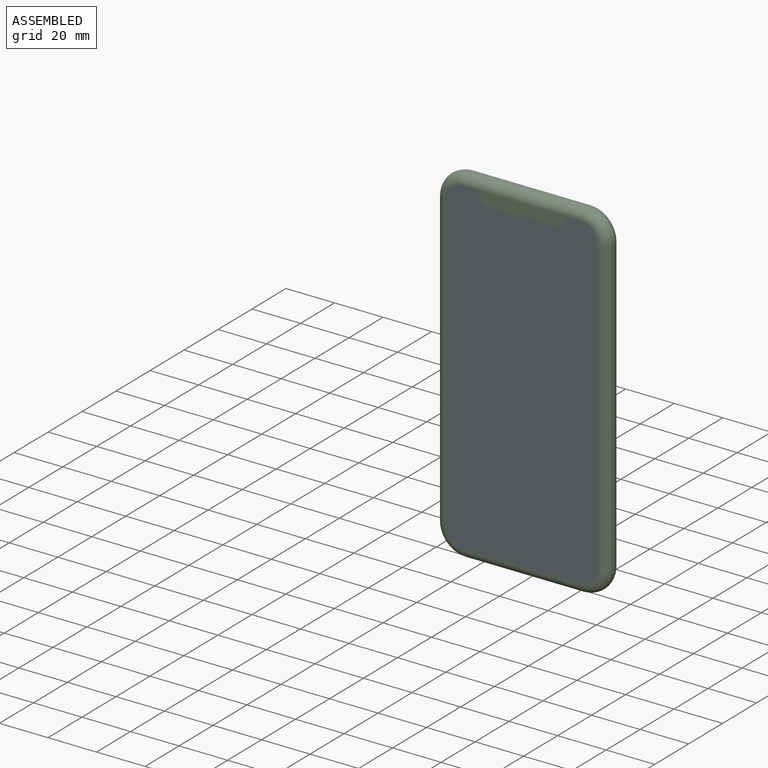
[diagram: assembled view]
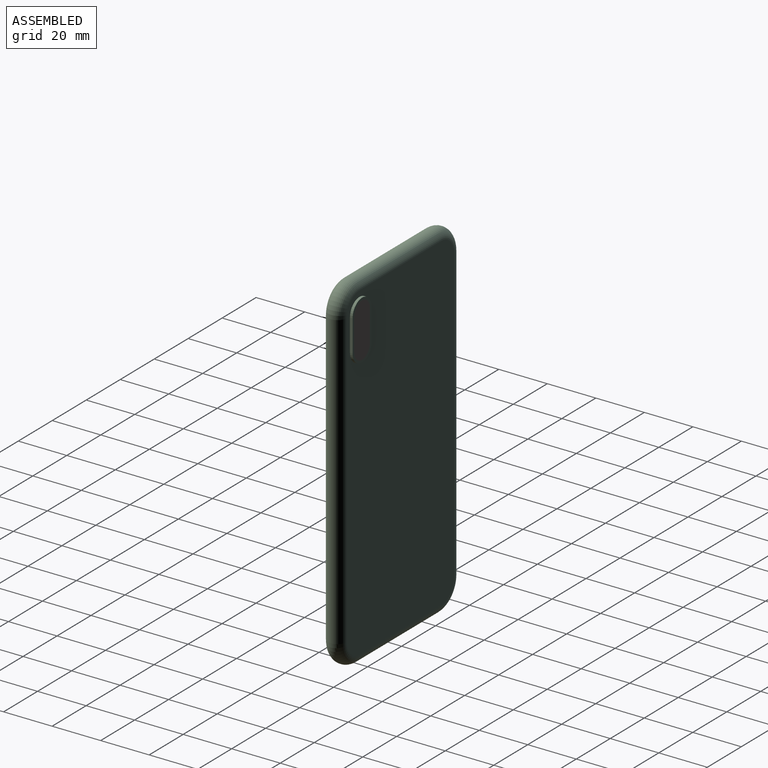
[diagram: assembled view, second angle]
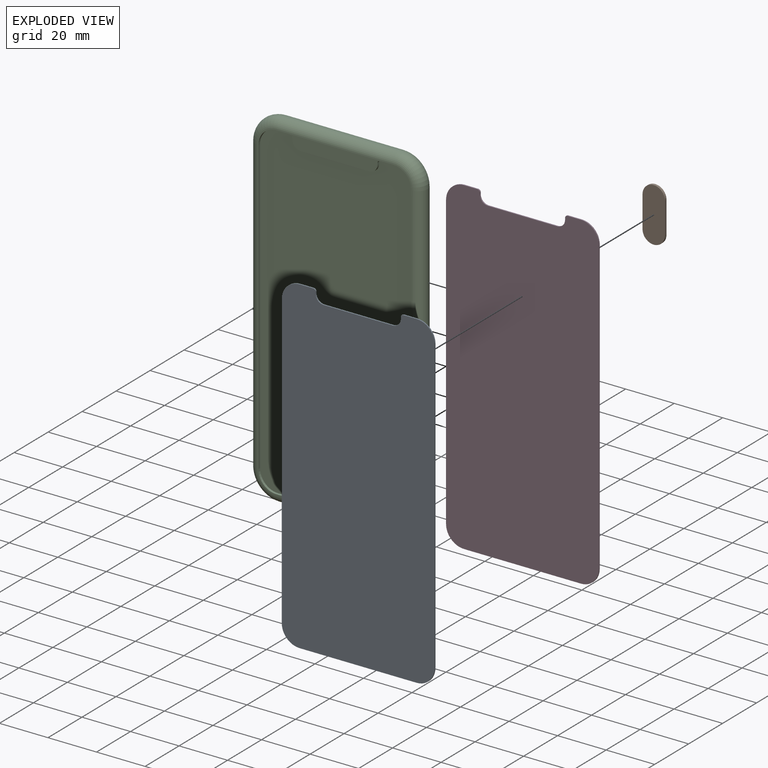
[diagram: exploded view]
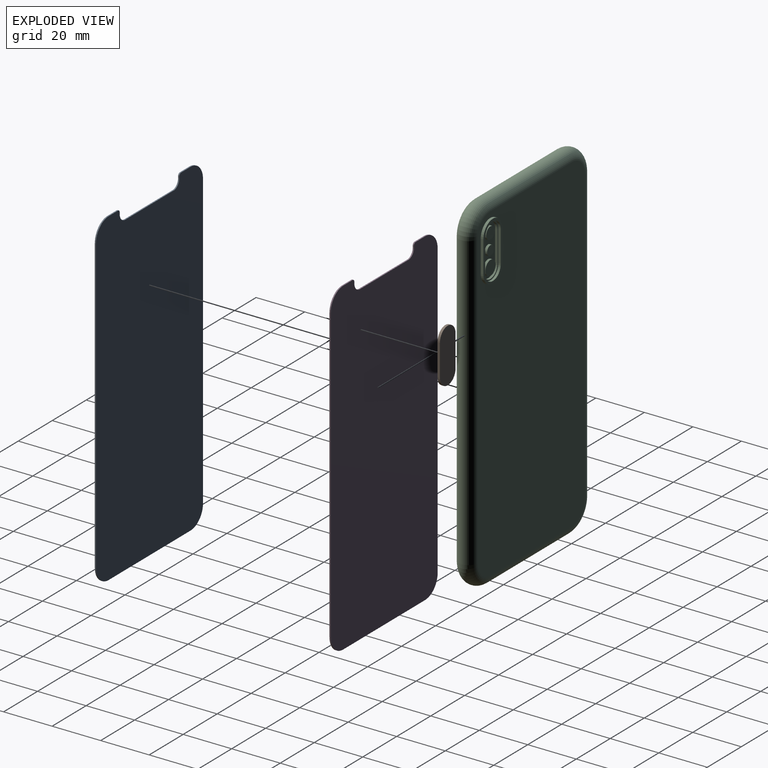
[diagram: exploded view, second angle]
ASSEMBLY  parts=4 mates=3
PART A: 18 faces, bbox 63x0.5x135.5 mm
  f0: plane 5.54x0.5mm, normal (0,0,1), area 2.8mm2, adj f1,f15,f16,f17
  f1: cylinder r=7.39mm len=7.39mm, axis (0,1,0), area 5.8mm2, adj f0,f2,f16,f17
  f2: plane 120.72x0.5mm, normal (-1,0,0), area 60.4mm2, adj f1,f3,f16,f17
  f3: cylinder r=7.39mm len=7.39mm, axis (0,1,0), area 5.8mm2, adj f2,f4,f16,f17
  f4: plane 48.22x0.5mm, normal (0,0,-1), area 24.1mm2, adj f3,f5,f16,f17
  f5: cylinder r=7.39mm len=7.39mm, axis (0,1,0), area 5.8mm2, adj f4,f6,f16,f17
  f6: plane 120.72x0.5mm, normal (1,0,0), area 60.4mm2, adj f5,f7,f16,f17
  f7: cylinder r=7.39mm len=7.39mm, axis (0,1,0), area 5.8mm2, adj f6,f8,f16,f17
  f8: plane 5.54x0.5mm, normal (0,0,1), area 2.8mm2, adj f7,f9,f16,f17
  f9: cylinder r=1.01mm len=1.01mm, axis (0,1,0), area 0.8mm2, adj f8,f10,f16,f17
  f10: plane 0.67x0.5mm, normal (-1,0,0), area 0.3mm2, adj f9,f11,f16,f17
  f11: cylinder r=3.36mm len=3.36mm, axis (0,1,0), area 2.6mm2, adj f10,f12,f16,f17
  f12: plane 28.39x0.5mm, normal (0,0,1), area 14.2mm2, adj f11,f13,f16,f17
  f13: cylinder r=3.36mm len=3.36mm, axis (0,1,0), area 2.6mm2, adj f12,f14,f16,f17
  f14: plane 0.67x0.5mm, normal (1,0,0), area 0.3mm2, adj f13,f15,f16,f17
  f15: cylinder r=1.01mm len=1.01mm, axis (0,1,0), area 0.8mm2, adj f0,f14,f16,f17
  f16: plane 135.5x63mm, normal (0,-1,0), area 8317mm2, adj f0,f1,f2,f3,f4,f5,f6,f7
  f17: plane 135.5x63mm, normal (0,1,0), area 8317mm2, adj f0,f1,f2,f3,f4,f5,f6,f7
PART B: 6 faces, bbox 9.2x1x22.2 mm
  f0: plane 13x1mm, normal (-1,0,0), area 13mm2, adj f1,f3,f4,f5
  f1: cylinder r=4.6mm len=9.2mm, axis (0,1,0), area 14.5mm2, adj f0,f2,f4,f5
  f2: plane 13x1mm, normal (1,0,0), area 13mm2, adj f1,f3,f4,f5
  f3: cylinder r=4.6mm len=9.2mm, axis (0,1,0), area 14.5mm2, adj f0,f2,f4,f5
  f4: plane 22.2x9.2mm, normal (0,-1,0), area 186.1mm2, adj f0,f1,f2,f3
  f5: plane 22.2x9.2mm, normal (0,1,0), area 186.1mm2, adj f0,f1,f2,f3
PART C: 48 faces, bbox 72.9x8.9x145.4 mm
  f0: plane 13x1mm, normal (1,0,0), area 13mm2, adj f2,f3,f10,f40
  f1: plane 13x1mm, normal (-1,0,0), area 13mm2, adj f2,f3,f10,f40
  f2: cylinder r=4.6mm len=9.2mm, axis (0,1,0), area 14.5mm2, adj f0,f1,f10,f40
  f3: cylinder r=4.6mm len=9.2mm, axis (0,1,0), area 14.5mm2, adj f0,f1,f10,f40
  f4: plane 135.75x63.25mm, normal (0,-1,0), area 220.6mm2, adj f11,f12,f13,f14,f15,f16,f17,f18
  f5: plane 135.75x63.25mm, normal (0,1,0), area 8293.6mm2, adj f6,f7,f8,f9,f11,f12,f13,f14
  f6: plane 13x1.1mm, normal (-1,0,0), area 14.3mm2, adj f5,f7,f9,f10
  f7: cylinder r=5.6mm len=11.2mm, axis (0,-1,0), area 19.4mm2, adj f5,f6,f8,f10
  f8: plane 13x1.1mm, normal (1,0,0), area 14.3mm2, adj f5,f7,f9,f10
  f9: cylinder r=5.6mm len=11.2mm, axis (0,-1,0), area 19.4mm2, adj f5,f6,f8,f10
  f10: plane 24.2x11.2mm, normal (0,1,0), area 58mm2, adj f0,f1,f2,f3,f6,f7,f8,f9
  f11: cylinder r=3.88mm len=48.22mm, axis (1,0,0), area 587mm2, adj f4,f5,f12,f13
  f12: torus R=7.52mm, axis (0,-1,0), area 190.9mm2, adj f4,f5,f11,f14
  f13: torus R=7.52mm, axis (0,-1,0), area 190.9mm2, adj f4,f5,f11,f15
  f14: cylinder r=3.88mm len=120.72mm, axis (0,0,1), area 1469.6mm2, adj f4,f5,f12,f16
  f15: cylinder r=3.88mm len=120.72mm, axis (0,0,-1), area 1469.6mm2, adj f4,f5,f13,f17
  f16: torus R=7.52mm, axis (0,-1,0), area 190.9mm2, adj f4,f5,f14,f18
  f17: torus R=7.52mm, axis (0,-1,0), area 190.9mm2, adj f4,f5,f15,f18
  f18: cylinder r=3.88mm len=48.22mm, axis (-1,0,0), area 587mm2, adj f4,f5,f16,f17
  f19: plane 5.54x1mm, normal (0,0,-1), area 5.5mm2, adj f4,f20,f34,f35
  f20: cylinder r=7.39mm len=7.39mm, axis (0,-1,0), area 11.6mm2, adj f4,f19,f21,f35
  f21: plane 120.72x1mm, normal (1,0,0), area 120.7mm2, adj f4,f20,f22,f35
  f22: cylinder r=7.39mm len=7.39mm, axis (0,-1,0), area 11.6mm2, adj f4,f21,f23,f35
  f23: plane 48.22x1mm, normal (0,0,1), area 48.2mm2, adj f4,f22,f24,f35
  f24: cylinder r=7.39mm len=7.39mm, axis (0,-1,0), area 11.6mm2, adj f4,f23,f25,f35
  f25: plane 120.72x1mm, normal (-1,0,0), area 120.7mm2, adj f4,f24,f26,f35
  f26: cylinder r=7.39mm len=7.39mm, axis (0,-1,0), area 11.6mm2, adj f4,f25,f27,f35
  f27: plane 5.54x1mm, normal (0,0,-1), area 5.5mm2, adj f4,f26,f28,f35
  f28: cylinder r=1.01mm len=1.01mm, axis (0,-1,0), area 1.6mm2, adj f4,f27,f29,f35
  f29: plane 1x0.67mm, normal (1,0,0), area 0.7mm2, adj f4,f28,f30,f35
  f30: cylinder r=3.36mm len=3.36mm, axis (0,-1,0), area 5.3mm2, adj f4,f29,f31,f35
  f31: plane 28.39x1mm, normal (0,0,-1), area 28.4mm2, adj f4,f30,f32,f35
  f32: cylinder r=3.36mm len=3.36mm, axis (0,-1,0), area 5.3mm2, adj f4,f31,f33,f35
  f33: plane 1x0.67mm, normal (-1,0,0), area 0.7mm2, adj f4,f32,f34,f35
  f34: cylinder r=1.01mm len=1.01mm, axis (0,-1,0), area 1.6mm2, adj f4,f19,f33,f35
  f35: plane 135.5x63mm, normal (0,-1,0), area 8317mm2, adj f19,f20,f21,f22,f23,f24,f25,f26
  f36: cylinder r=4.1mm len=8.2mm, axis (0,-1,0), area 12.9mm2, adj f37,f39,f40,f47
  f37: plane 13x1mm, normal (1,0,0), area 13mm2, adj f36,f38,f40,f47
  f38: cylinder r=4.1mm len=8.2mm, axis (0,-1,0), area 12.9mm2, adj f37,f39,f40,f47
  f39: plane 13x1mm, normal (-1,0,0), area 13mm2, adj f36,f38,f40,f47
  f40: plane 22.2x9.2mm, normal (0,1,0), area 26.7mm2, adj f0,f1,f2,f3,f36,f37,f38,f39
  f41: plane 4x4mm, normal (0,1,0), area 12.6mm2, adj f44
  f42: plane 6x6mm, normal (0,1,0), area 28.3mm2, adj f45
  f43: plane 5x5mm, normal (0,1,0), area 19.6mm2, adj f46
  f44: cylinder r=2mm len=4mm, axis (0,-1,0), area 12.6mm2, adj f41,f47
  f45: cylinder r=3mm len=6mm, axis (0,-1,0), area 18.8mm2, adj f42,f47
  f46: cylinder r=2.5mm len=5mm, axis (0,-1,0), area 15.7mm2, adj f43,f47
  f47: plane 21.2x8.2mm, normal (0,1,0), area 98.9mm2, adj f36,f37,f38,f39,f44,f45,f46
PART D: 18 faces, bbox 63x0.5x135.5 mm
  f0: plane 5.54x0.5mm, normal (0,0,1), area 2.8mm2, adj f1,f15,f16,f17
  f1: cylinder r=7.39mm len=7.39mm, axis (0,1,0), area 5.8mm2, adj f0,f2,f16,f17
  f2: plane 120.72x0.5mm, normal (-1,0,0), area 60.4mm2, adj f1,f3,f16,f17
  f3: cylinder r=7.39mm len=7.39mm, axis (0,1,0), area 5.8mm2, adj f2,f4,f16,f17
  f4: plane 48.22x0.5mm, normal (0,0,-1), area 24.1mm2, adj f3,f5,f16,f17
  f5: cylinder r=7.39mm len=7.39mm, axis (0,1,0), area 5.8mm2, adj f4,f6,f16,f17
  f6: plane 120.72x0.5mm, normal (1,0,0), area 60.4mm2, adj f5,f7,f16,f17
  f7: cylinder r=7.39mm len=7.39mm, axis (0,1,0), area 5.8mm2, adj f6,f8,f16,f17
  f8: plane 5.54x0.5mm, normal (0,0,1), area 2.8mm2, adj f7,f9,f16,f17
  f9: cylinder r=1.01mm len=1.01mm, axis (0,1,0), area 0.8mm2, adj f8,f10,f16,f17
  f10: plane 0.67x0.5mm, normal (-1,0,0), area 0.3mm2, adj f9,f11,f16,f17
  f11: cylinder r=3.36mm len=3.36mm, axis (0,1,0), area 2.6mm2, adj f10,f12,f16,f17
  f12: plane 28.39x0.5mm, normal (0,0,1), area 14.2mm2, adj f11,f13,f16,f17
  f13: cylinder r=3.36mm len=3.36mm, axis (0,1,0), area 2.6mm2, adj f12,f14,f16,f17
  f14: plane 0.67x0.5mm, normal (1,0,0), area 0.3mm2, adj f13,f15,f16,f17
  f15: cylinder r=1.01mm len=1.01mm, axis (0,1,0), area 0.8mm2, adj f0,f14,f16,f17
  f16: plane 135.5x63mm, normal (0,-1,0), area 8317mm2, adj f0,f1,f2,f3,f4,f5,f6,f7
  f17: plane 135.5x63mm, normal (0,1,0), area 8317mm2, adj f0,f1,f2,f3,f4,f5,f6,f7
PLACE A at identity
PLACE B at identity
PLACE C at identity fixed
PLACE D at identity
MATE fastened D.f17 <-> C.f35  axis (0,1,0) through (0.59,-6.75,-0.04)mm
MATE fastened B.f4 <-> C.f44  axis (0,-1,0) through (24.79,0.1,54.66)mm
MATE fastened A.f17 <-> D.f16  axis (0,1,0) through (0.59,-7.25,-0.04)mm
